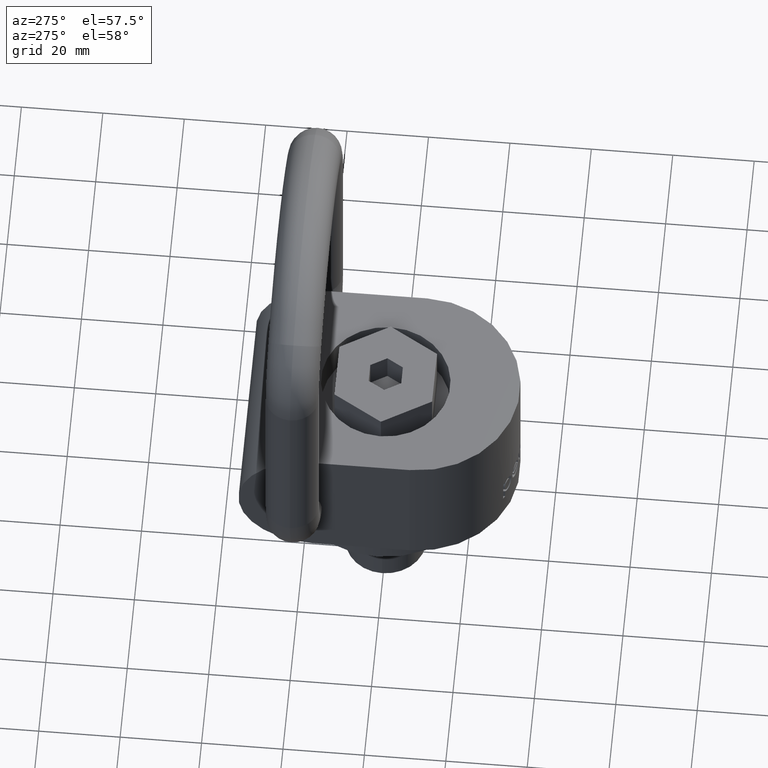
[diagram: clean part render]
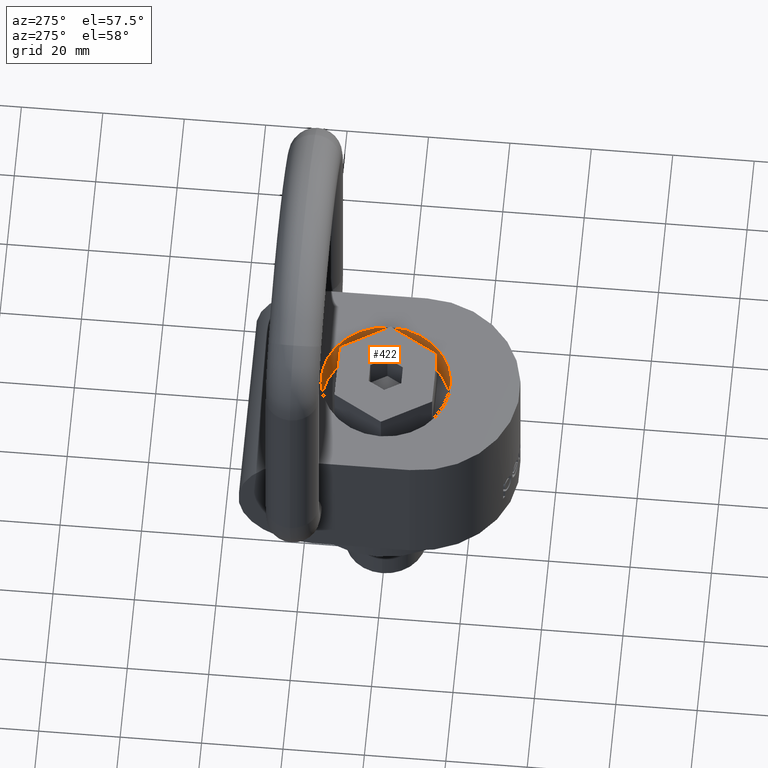
[diagram: same view with one face highlighted and labeled with its STEP entity id]
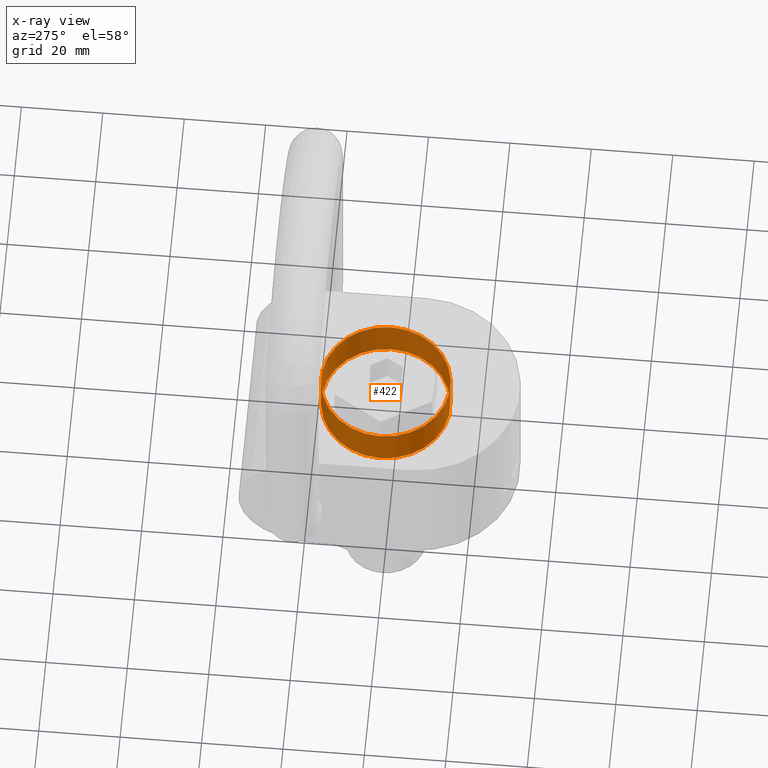
[diagram: x-ray of the same camera — body ghosted, the highlighted face saturated]
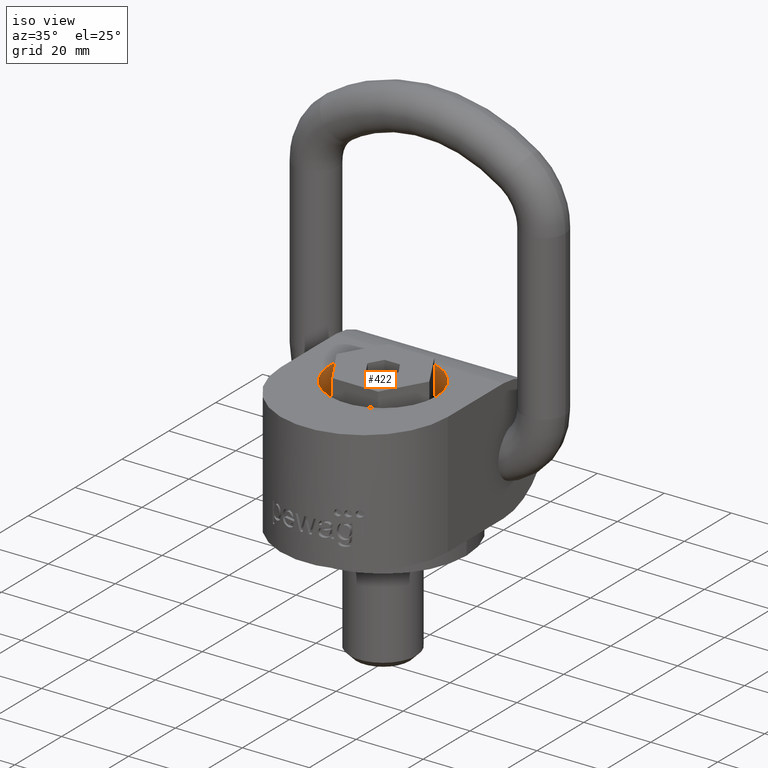
[diagram: same view with one face highlighted and labeled with its STEP entity id]
A machine part, auxiliary view. The second image highlights one B-rep face of the part: STEP entity #422.
The next image is the same camera in x-ray: the body ghosted, the highlighted face saturated — about 0% of this face is hidden behind the body in this view.
A second angle (iso view) of the same face is appended — the face is thin or edge-on in the first view.
In plain terms, the highlighted cylindrical surface (bore or boss wall) has radius 15.8564 mm, axis along (0, 0, -1).
Its self-contained STEP definition (entity closure, byte-faithful):
#422=ADVANCED_FACE('',(#586,#587),#548,.F.);
#548=CYLINDRICAL_SURFACE('',#2515,15.856406460551);
#586=FACE_BOUND('',#648,.T.);
#587=FACE_BOUND('',#649,.T.);
#648=EDGE_LOOP('',(#1248));
#649=EDGE_LOOP('',(#1249,#1250));
#1124=CIRCLE('',#2510,15.856406460551);
#1125=CIRCLE('',#2514,15.856406460551);
#1248=ORIENTED_EDGE('',*,*,#2072,.T.);
#1249=ORIENTED_EDGE('',*,*,#2063,.T.);
#1250=ORIENTED_EDGE('',*,*,#2069,.T.);
#1846=VERTEX_POINT('',#3895);
#1847=VERTEX_POINT('',#3896);
#1850=VERTEX_POINT('',#3912);
#2063=EDGE_CURVE('',#1846,#1847,#2331,.T.);
#2069=EDGE_CURVE('',#1847,#1846,#1124,.T.);
#2072=EDGE_CURVE('',#1850,#1850,#1125,.T.);
#2331=B_SPLINE_CURVE_WITH_KNOTS('',3,(#3891,#3892,#3893,#3894),
 .UNSPECIFIED.,.F.,.F.,(4,4),(0.,1.),.UNSPECIFIED.);
#2510=AXIS2_PLACEMENT_3D('',#3905,#2706,#2707);
#2514=AXIS2_PLACEMENT_3D('',#3911,#2716,#2717);
#2515=AXIS2_PLACEMENT_3D('',#3913,#2718,#2719);
#2706=DIRECTION('',(0.,0.,1.));
#2707=DIRECTION('',(-1.,0.,0.));
#2716=DIRECTION('',(0.,0.,-1.));
#2717=DIRECTION('',(1.,0.,0.));
#2718=DIRECTION('',(0.,0.,-1.));
#2719=DIRECTION('',(-1.,0.,0.));
#3891=CARTESIAN_POINT('',(1.8338827231327,15.75,36.5));
#3892=CARTESIAN_POINT('',(0.611294241044232,15.8923545330034,36.5));
#3893=CARTESIAN_POINT('',(-0.611294241044232,15.8923545330034,36.5));
#3894=CARTESIAN_POINT('',(-1.8338827231327,15.75,36.5));
#3895=CARTESIAN_POINT('',(1.8338827231327,15.75,36.5));
#3896=CARTESIAN_POINT('',(-1.8338827231327,15.75,36.5));
#3905=CARTESIAN_POINT('',(0.,0.,36.5));
#3911=CARTESIAN_POINT('',(0.,0.,26.5));
#3912=CARTESIAN_POINT('',(15.856406460551,0.,26.5));
#3913=CARTESIAN_POINT('',(0.,0.,37.5));